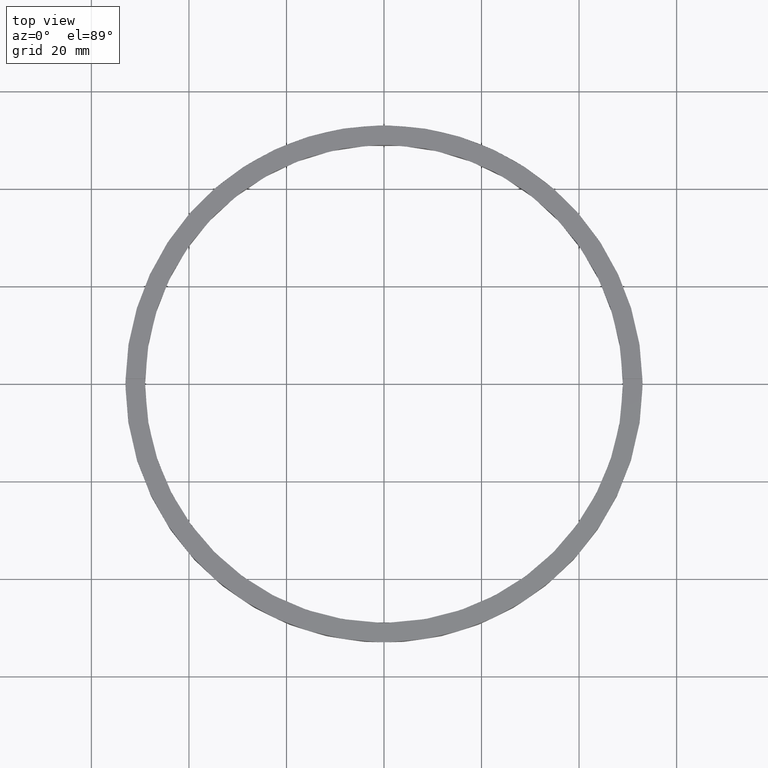
[diagram: clean part render]
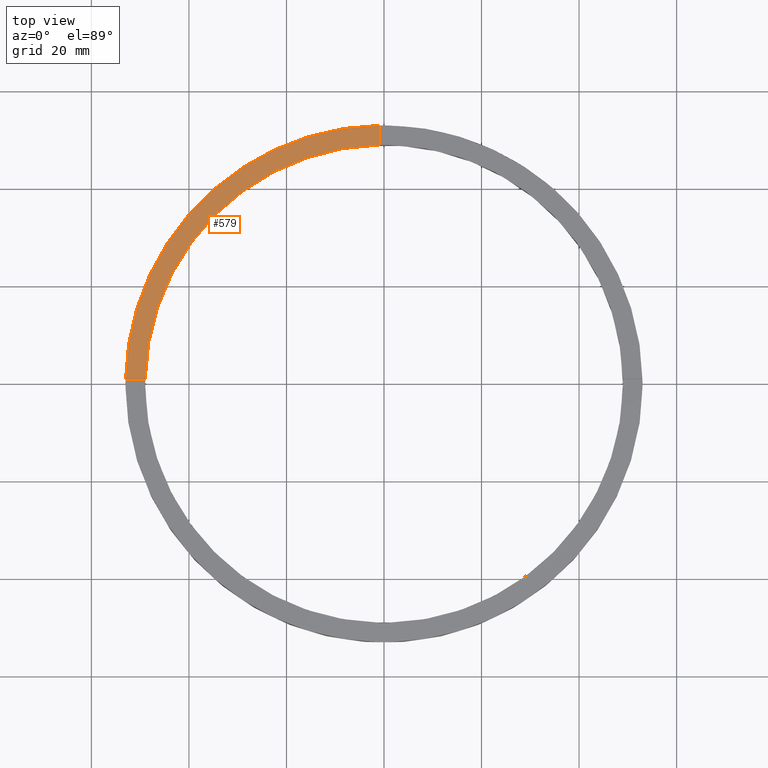
[diagram: same view with one face highlighted and labeled with its STEP entity id]
A machine part, top view. The second image highlights one B-rep face of the part: STEP entity #579.
In plain terms, the highlighted planar face has unit normal (0, 0, 1).
Its self-contained STEP definition (entity closure, byte-faithful):
#10 = CARTESIAN_POINT ( 'NONE',  ( -52.99056519796708642, 0.9999999999999676925, 5.000000000000000000 ) ) ;
#13 = CARTESIAN_POINT ( 'NONE',  ( -48.98979485566356118, 0.9999999999999685807, 5.000000000000000000 ) ) ;
#48 = CIRCLE ( 'NONE', #622, 53.00000000000000711 ) ;
#64 = DIRECTION ( 'NONE',  ( -0.000000000000000000, -1.000000000000000000, -0.000000000000000000 ) ) ;
#78 = VECTOR ( 'NONE', #64, 1000.000000000000000 ) ;
#123 = EDGE_LOOP ( 'NONE', ( #701, #190, #682, #171 ) ) ;
#171 = ORIENTED_EDGE ( 'NONE', *, *, #554, .F. ) ;
#190 = ORIENTED_EDGE ( 'NONE', *, *, #589, .T. ) ;
#241 = CARTESIAN_POINT ( 'NONE',  ( 0.000000000000000000, 0.000000000000000000, 5.000000000000000000 ) ) ;
#246 = CARTESIAN_POINT ( 'NONE',  ( 0.000000000000000000, 0.000000000000000000, 5.000000000000000000 ) ) ;
#262 = DIRECTION ( 'NONE',  ( -1.000000000000000000, -1.951563910473907735E-16, 0.000000000000000000 ) ) ;
#281 = DIRECTION ( 'NONE',  ( 1.000000000000000000, 0.000000000000000000, 0.000000000000000000 ) ) ;
#282 = DIRECTION ( 'NONE',  ( 1.000000000000000000, 0.000000000000000000, 0.000000000000000000 ) ) ;
#285 = DIRECTION ( 'NONE',  ( 1.000000000000000000, 0.000000000000000000, -0.000000000000000000 ) ) ;
#322 = CARTESIAN_POINT ( 'NONE',  ( -1.000000000000027089, 52.99056519796708642, 5.000000000000000000 ) ) ;
#340 = VECTOR ( 'NONE', #262, 1000.000000000000000 ) ;
#360 = PLANE ( 'NONE',  #405 ) ;
#405 = AXIS2_PLACEMENT_3D ( 'NONE', #246, #649, #285 ) ;
#436 = DIRECTION ( 'NONE',  ( 0.000000000000000000, 0.000000000000000000, 1.000000000000000000 ) ) ;
#505 = VERTEX_POINT ( 'NONE', #732 ) ;
#517 = CARTESIAN_POINT ( 'NONE',  ( -43.00000000000019185, 0.9999999999999696909, 5.000000000000000000 ) ) ;
#529 = DIRECTION ( 'NONE',  ( 0.000000000000000000, 0.000000000000000000, 1.000000000000000000 ) ) ;
#537 = CARTESIAN_POINT ( 'NONE',  ( -1.000000000000027089, 43.00000000000000000, 5.000000000000000000 ) ) ;
#554 = EDGE_CURVE ( 'NONE', #505, #723, #569, .T. ) ;
#560 = FACE_OUTER_BOUND ( 'NONE', #123, .T. ) ;
#569 = CIRCLE ( 'NONE', #578, 49.00000000000000000 ) ;
#578 = AXIS2_PLACEMENT_3D ( 'NONE', #728, #436, #281 ) ;
#579 = ADVANCED_FACE ( 'NONE', ( #560 ), #360, .T. ) ;
#586 = LINE ( 'NONE', #537, #78 ) ;
#589 = EDGE_CURVE ( 'NONE', #664, #726, #48, .T. ) ;
#602 = LINE ( 'NONE', #517, #340 ) ;
#622 = AXIS2_PLACEMENT_3D ( 'NONE', #241, #529, #282 ) ;
#649 = DIRECTION ( 'NONE',  ( 0.000000000000000000, 0.000000000000000000, 1.000000000000000000 ) ) ;
#653 = EDGE_CURVE ( 'NONE', #723, #726, #602, .T. ) ;
#664 = VERTEX_POINT ( 'NONE', #322 ) ;
#682 = ORIENTED_EDGE ( 'NONE', *, *, #653, .F. ) ;
#701 = ORIENTED_EDGE ( 'NONE', *, *, #759, .F. ) ;
#723 = VERTEX_POINT ( 'NONE', #13 ) ;
#726 = VERTEX_POINT ( 'NONE', #10 ) ;
#728 = CARTESIAN_POINT ( 'NONE',  ( 0.000000000000000000, 0.000000000000000000, 5.000000000000000000 ) ) ;
#732 = CARTESIAN_POINT ( 'NONE',  ( -1.000000000000027089, 48.98979485566356118, 5.000000000000000000 ) ) ;
#759 = EDGE_CURVE ( 'NONE', #664, #505, #586, .T. ) ;